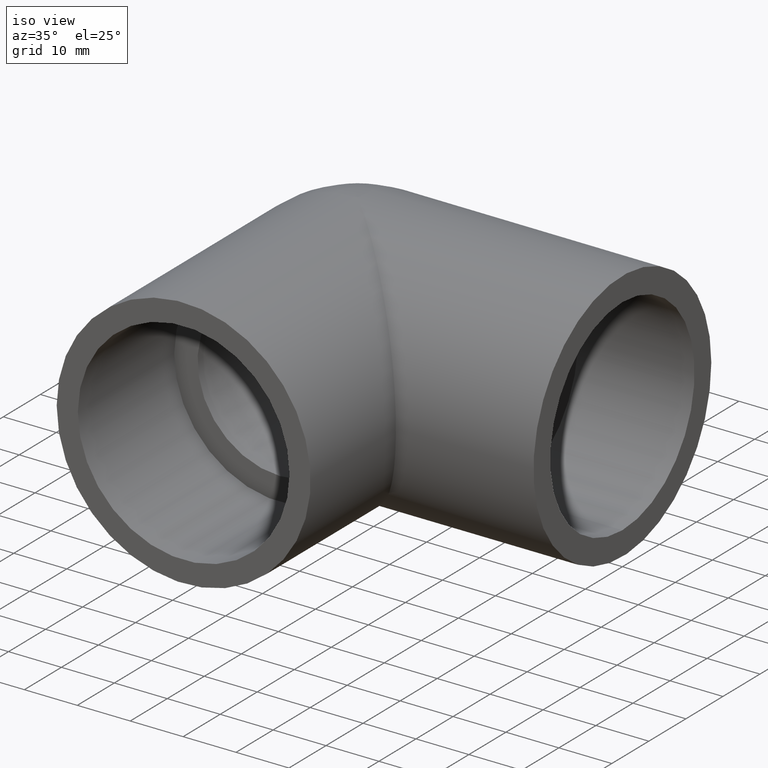
[diagram: clean part render]
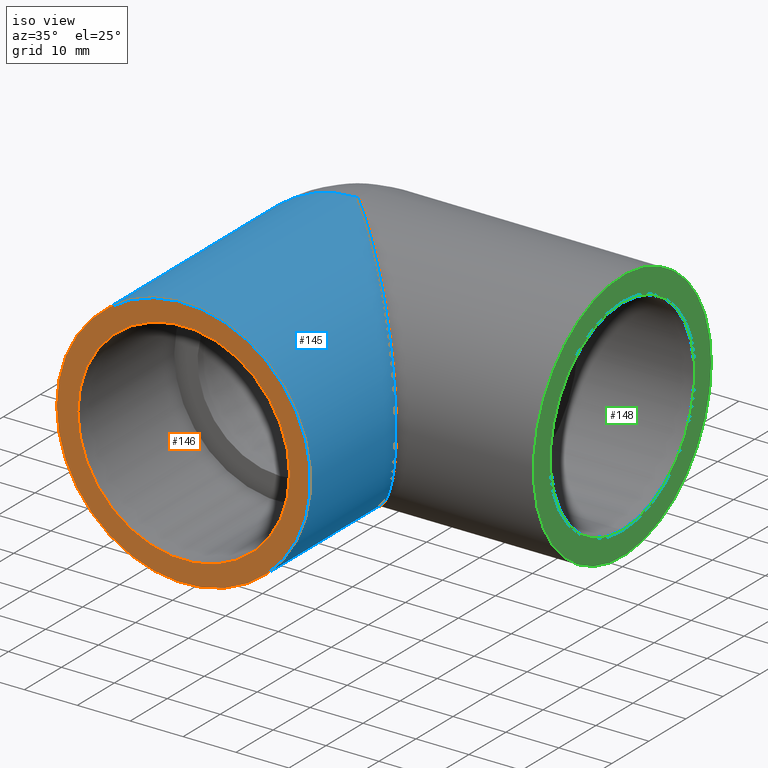
[diagram: same view with three faces highlighted in distinct colors, each labeled with its STEP entity id]
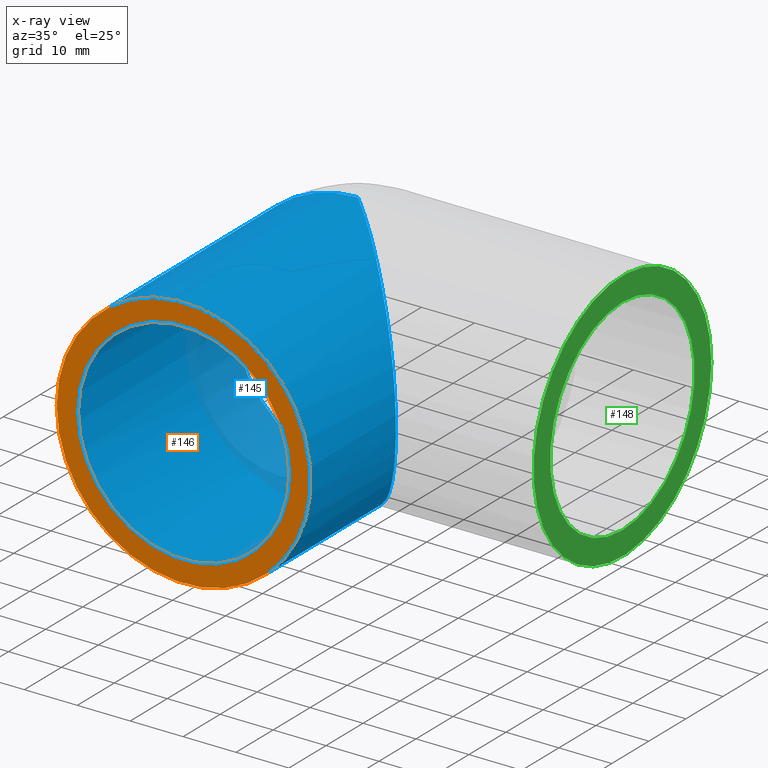
[diagram: x-ray of the same camera — body ghosted, the three highlighted faces saturated]
A machine part, iso view with three faces highlighted in distinct colors.
The next image is the same camera in x-ray (body ghosted, the three faces saturated) — at least one of them is partly hidden behind the body in this view.
Their STEP definitions:

[orange] entity #146 — the highlighted planar face has unit normal (0, -1, 0).
#19=PLANE('',#172);
#30=FACE_BOUND('',#63,.T.);
#42=FACE_OUTER_BOUND('',#62,.T.);
#62=EDGE_LOOP('',(#124));
#63=EDGE_LOOP('',(#125));
#73=CIRCLE('',#160,20.);
#78=CIRCLE('',#170,24.);
#85=VERTEX_POINT('',#243);
#90=VERTEX_POINT('',#258);
#97=EDGE_CURVE('',#85,#85,#73,.T.);
#102=EDGE_CURVE('',#90,#90,#78,.T.);
#124=ORIENTED_EDGE('',*,*,#102,.F.);
#125=ORIENTED_EDGE('',*,*,#97,.T.);
#146=ADVANCED_FACE('',(#42,#30),#19,.T.);
#160=AXIS2_PLACEMENT_3D('',#244,#196,#197);
#170=AXIS2_PLACEMENT_3D('',#259,#216,#217);
#172=AXIS2_PLACEMENT_3D('',#261,#220,#221);
#196=DIRECTION('center_axis',(-1.22464679914735E-16,1.,0.));
#197=DIRECTION('ref_axis',(-1.,-1.70803542250024E-16,0.));
#216=DIRECTION('center_axis',(-1.22464679914735E-16,1.,0.));
#217=DIRECTION('ref_axis',(1.,1.22464679914735E-16,0.));
#220=DIRECTION('center_axis',(1.22464679914735E-16,-1.,0.));
#221=DIRECTION('ref_axis',(0.,0.,-1.));
#243=CARTESIAN_POINT('',(20.,-47.,2.44929359829471E-15));
#244=CARTESIAN_POINT('Origin',(5.75583995599256E-15,-47.,0.));
#258=CARTESIAN_POINT('',(-24.,-47.,0.));
#259=CARTESIAN_POINT('Origin',(5.75583995599256E-15,-47.,0.));
#261=CARTESIAN_POINT('Origin',(-24.,-47.,0.));

[blue] entity #145 — the highlighted cylindrical surface (bore or boss wall) has radius 24 mm, axis along (-0, 1, 0).
#15=ELLIPSE('',#171,33.9411254969543,24.);
#29=FACE_BOUND('',#61,.T.);
#41=FACE_OUTER_BOUND('',#60,.T.);
#60=EDGE_LOOP('',(#121));
#61=EDGE_LOOP('',(#122,#123));
#77=CIRCLE('',#168,24.);
#78=CIRCLE('',#170,24.);
#88=VERTEX_POINT('',#253);
#89=VERTEX_POINT('',#254);
#90=VERTEX_POINT('',#258);
#101=EDGE_CURVE('',#88,#89,#77,.T.);
#102=EDGE_CURVE('',#90,#90,#78,.T.);
#103=EDGE_CURVE('',#89,#88,#15,.T.);
#121=ORIENTED_EDGE('',*,*,#102,.T.);
#122=ORIENTED_EDGE('',*,*,#103,.F.);
#123=ORIENTED_EDGE('',*,*,#101,.F.);
#135=CYLINDRICAL_SURFACE('',#169,24.);
#145=ADVANCED_FACE('',(#41,#29),#135,.T.);
#168=AXIS2_PLACEMENT_3D('',#256,#212,#213);
#169=AXIS2_PLACEMENT_3D('',#257,#214,#215);
#170=AXIS2_PLACEMENT_3D('',#259,#216,#217);
#171=AXIS2_PLACEMENT_3D('',#260,#218,#219);
#212=DIRECTION('center_axis',(-1.22464679914735E-16,1.,0.));
#213=DIRECTION('ref_axis',(1.,1.22464679914735E-16,0.));
#214=DIRECTION('center_axis',(-1.22464679914735E-16,1.,0.));
#215=DIRECTION('ref_axis',(-1.,0.,0.));
#216=DIRECTION('center_axis',(-1.22464679914735E-16,1.,0.));
#217=DIRECTION('ref_axis',(1.,1.22464679914735E-16,0.));
#218=DIRECTION('center_axis',(0.707106781186547,0.707106781186548,0.));
#219=DIRECTION('ref_axis',(-0.707106781186548,0.707106781186547,0.));
#253=CARTESIAN_POINT('',(-8.81745695386094E-15,-7.19884695677691E-31,-24.));
#254=CARTESIAN_POINT('',(-8.81745695386094E-15,-7.19884695677691E-31,24.));
#256=CARTESIAN_POINT('Origin',(0.,0.,0.));
#257=CARTESIAN_POINT('Origin',(2.87791997799628E-15,-23.5,0.));
#258=CARTESIAN_POINT('',(-24.,-47.,0.));
#259=CARTESIAN_POINT('Origin',(5.75583995599256E-15,-47.,0.));
#260=CARTESIAN_POINT('Origin',(-4.93038065763132E-31,0.,0.));

[green] entity #148 — the highlighted planar face has unit normal (1, 0, 0).
#20=PLANE('',#175);
#32=FACE_BOUND('',#67,.T.);
#44=FACE_OUTER_BOUND('',#66,.T.);
#66=EDGE_LOOP('',(#129));
#67=EDGE_LOOP('',(#130));
#75=CIRCLE('',#164,19.476);
#79=CIRCLE('',#174,24.);
#87=VERTEX_POINT('',#249);
#91=VERTEX_POINT('',#263);
#99=EDGE_CURVE('',#87,#87,#75,.T.);
#104=EDGE_CURVE('',#91,#91,#79,.T.);
#129=ORIENTED_EDGE('',*,*,#104,.T.);
#130=ORIENTED_EDGE('',*,*,#99,.T.);
#148=ADVANCED_FACE('',(#44,#32),#20,.T.);
#164=AXIS2_PLACEMENT_3D('',#250,#204,#205);
#174=AXIS2_PLACEMENT_3D('',#264,#224,#225);
#175=AXIS2_PLACEMENT_3D('',#265,#226,#227);
#204=DIRECTION('center_axis',(-1.,0.,0.));
#205=DIRECTION('ref_axis',(0.,0.,1.));
#224=DIRECTION('center_axis',(1.,0.,0.));
#225=DIRECTION('ref_axis',(0.,0.,-1.));
#226=DIRECTION('center_axis',(1.,0.,0.));
#227=DIRECTION('ref_axis',(0.,0.,-1.));
#249=CARTESIAN_POINT('',(50.,2.38512210601939E-15,-19.476));
#250=CARTESIAN_POINT('Origin',(50.,0.,0.));
#263=CARTESIAN_POINT('',(50.,24.,0.));
#264=CARTESIAN_POINT('Origin',(50.,0.,0.));
#265=CARTESIAN_POINT('Origin',(50.,0.,0.));